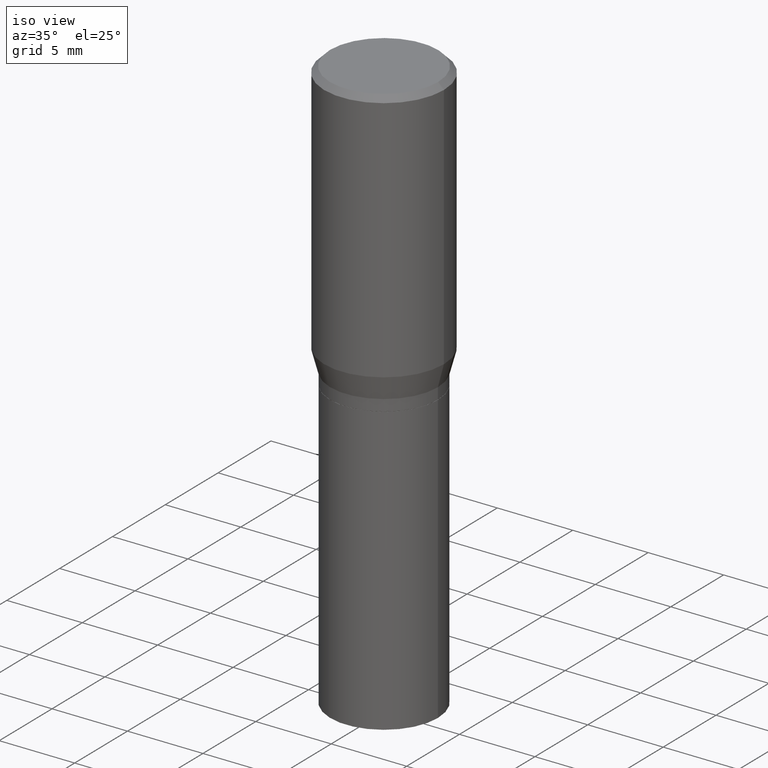
[diagram: clean part render]
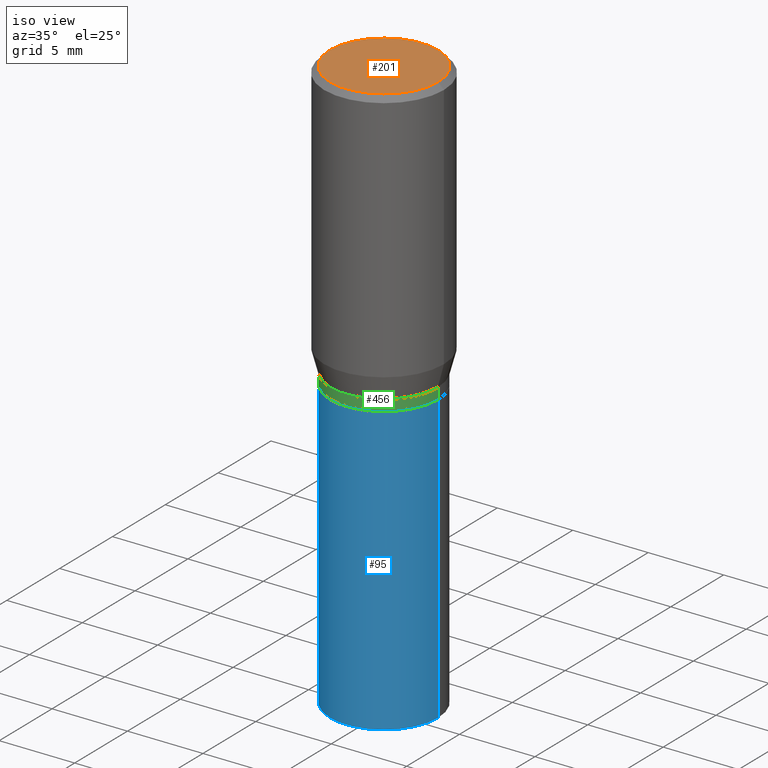
[diagram: same view with three faces highlighted in distinct colors, each labeled with its STEP entity id]
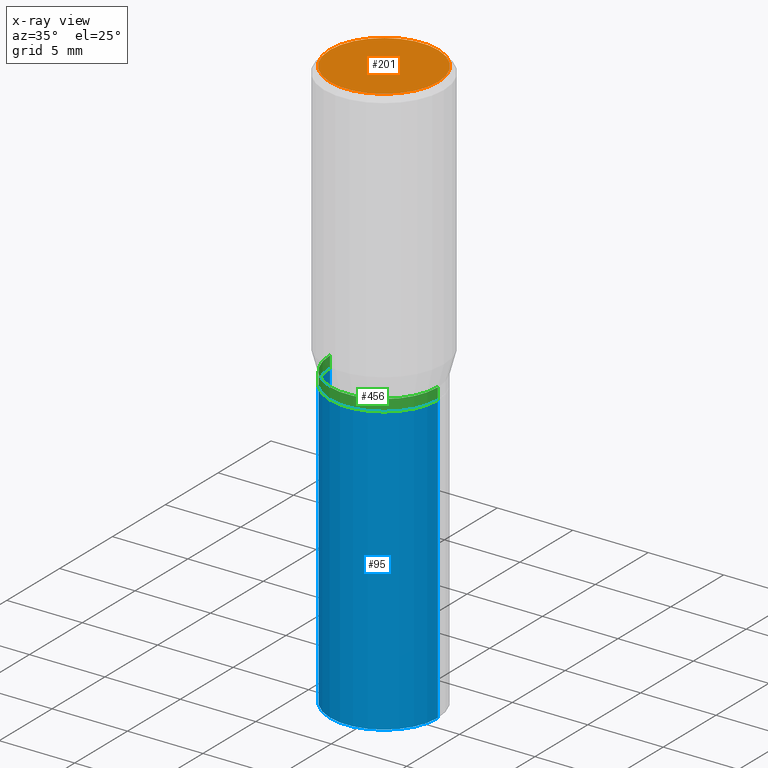
[diagram: x-ray of the same camera — body ghosted, the three highlighted faces saturated]
A machine part, iso view with three faces highlighted in distinct colors.
The next image is the same camera in x-ray (body ghosted, the three faces saturated) — at least one of them is partly hidden behind the body in this view.
Their STEP definitions:

[orange] entity #201 — the highlighted planar face has unit normal (0, -0, -1).
#13 = CARTESIAN_POINT ( 'NONE',  ( 9.863434782231852123E-16, 0.1412500000000000144, -3.382281833131152300E-16 ) ) ;
#15 = CARTESIAN_POINT ( 'NONE',  ( -0.1412500000000000144, 1.012529588264509344E-15, 3.098871115969513504E-16 ) ) ;
#17 = CARTESIAN_POINT ( 'NONE',  ( 0.1412500000000000144, -1.046685187209838552E-15, 3.098871115969654020E-16 ) ) ;
#24 = EDGE_CURVE ( 'NONE', #310, #285, #268, .T. ) ;
#90 = DIRECTION ( 'NONE',  ( 2.438088387897960049E-29, -3.491481338843145188E-15, -1.000000000000000000 ) ) ;
#96 = AXIS2_PLACEMENT_3D ( 'NONE', #386, #363, #212 ) ;
#104 = ORIENTED_EDGE ( 'NONE', *, *, #24, .T. ) ;
#117 = CIRCLE ( 'NONE', #364, 0.1412500000000000144 ) ;
#129 = DIRECTION ( 'NONE',  ( -2.445468806185136597E-29, 3.491481338843145583E-15, 1.000000000000000000 ) ) ;
#135 = ORIENTED_EDGE ( 'NONE', *, *, #306, .T. ) ;
#155 = DIRECTION ( 'NONE',  ( -1.000000000000000000, 6.982962677686265922E-15, -4.876176775795935793E-29 ) ) ;
#163 = CARTESIAN_POINT ( 'NONE',  ( -7.578192648491738489E-45, 1.081965067288783235E-30, 3.098871115969583022E-16 ) ) ;
#194 = AXIS2_PLACEMENT_3D ( 'NONE', #13, #90, #155 ) ;
#201 = ADVANCED_FACE ( 'NONE', ( #370 ), #407, .F. ) ;
#212 = DIRECTION ( 'NONE',  ( 1.000000000000000000, -6.982962677686265922E-15, 4.895681441798226927E-29 ) ) ;
#268 = CIRCLE ( 'NONE', #96, 0.1412500000000000144 ) ;
#276 = EDGE_LOOP ( 'NONE', ( #104, #135 ) ) ;
#285 = VERTEX_POINT ( 'NONE', #17 ) ;
#302 = DIRECTION ( 'NONE',  ( 1.000000000000000000, -6.982962677686265922E-15, 4.895681441798226927E-29 ) ) ;
#306 = EDGE_CURVE ( 'NONE', #285, #310, #117, .T. ) ;
#310 = VERTEX_POINT ( 'NONE', #15 ) ;
#363 = DIRECTION ( 'NONE',  ( -2.445468806185136597E-29, 3.491481338843145583E-15, 1.000000000000000000 ) ) ;
#364 = AXIS2_PLACEMENT_3D ( 'NONE', #163, #129, #302 ) ;
#370 = FACE_OUTER_BOUND ( 'NONE', #276, .T. ) ;
#386 = CARTESIAN_POINT ( 'NONE',  ( -7.578192648491738489E-45, 1.081965067288783235E-30, 3.098871115969583022E-16 ) ) ;
#407 = PLANE ( 'NONE',  #194 ) ;

[blue] entity #95 — the highlighted cylindrical surface (partial cylindrical patch) has radius 3.5712 mm, axis along (-0, 0, 1).
#22 = LINE ( 'NONE', #85, #39 ) ;
#39 = VECTOR ( 'NONE', #121, 39.37007874015748143 ) ;
#71 = ORIENTED_EDGE ( 'NONE', *, *, #239, .F. ) ;
#85 = CARTESIAN_POINT ( 'NONE',  ( 0.1406000000000000028, -9.818045524826891058E-16, 6.855904546769086274E-30 ) ) ;
#92 = CARTESIAN_POINT ( 'NONE',  ( -0.1406000000000000028, 9.990230864787008809E-16, -6.916022736898397739E-30 ) ) ;
#95 = ADVANCED_FACE ( 'NONE', ( #325 ), #216, .T. ) ;
#118 = DIRECTION ( 'NONE',  ( -2.445468806185136597E-29, 3.491481338843145583E-15, 1.000000000000000000 ) ) ;
#121 = DIRECTION ( 'NONE',  ( -2.445468806185136877E-29, 3.491481338843145188E-15, 1.000000000000000000 ) ) ;
#132 = ORIENTED_EDGE ( 'NONE', *, *, #320, .F. ) ;
#133 = AXIS2_PLACEMENT_3D ( 'NONE', #254, #257, #154 ) ;
#154 = DIRECTION ( 'NONE',  ( 1.000000000000000000, -6.982962677686266711E-15, 4.876176775795936353E-29 ) ) ;
#161 = CARTESIAN_POINT ( 'NONE',  ( 3.668203209277704895E-29, -5.237222008264718177E-15, -1.500000000000000222 ) ) ;
#191 = LINE ( 'NONE', #92, #220 ) ;
#196 = DIRECTION ( 'NONE',  ( -2.445468806185136877E-29, 3.491481338843145188E-15, 1.000000000000000000 ) ) ;
#216 = CYLINDRICAL_SURFACE ( 'NONE', #133, 0.1406000000000000028 ) ;
#220 = VECTOR ( 'NONE', #196, 39.37007874015748143 ) ;
#223 = CARTESIAN_POINT ( 'NONE',  ( 0.1406000000000000028, -3.600415556615047800E-15, -0.7500000000000001110 ) ) ;
#236 = AXIS2_PLACEMENT_3D ( 'NONE', #161, #266, #299 ) ;
#239 = EDGE_CURVE ( 'NONE', #352, #246, #346, .T. ) ;
#240 = EDGE_LOOP ( 'NONE', ( #132, #463, #419, #71 ) ) ;
#243 = VERTEX_POINT ( 'NONE', #367 ) ;
#246 = VERTEX_POINT ( 'NONE', #223 ) ;
#254 = CARTESIAN_POINT ( 'NONE',  ( 0.000000000000000000, 0.000000000000000000, 0.000000000000000000 ) ) ;
#257 = DIRECTION ( 'NONE',  ( -2.445468806185136597E-29, 3.491481338843145583E-15, 1.000000000000000000 ) ) ;
#263 = CARTESIAN_POINT ( 'NONE',  ( 1.834101604638852448E-29, -2.618611004132359088E-15, -0.7500000000000001110 ) ) ;
#266 = DIRECTION ( 'NONE',  ( -2.445468806185136597E-29, 3.491481338843145583E-15, 1.000000000000000000 ) ) ;
#292 = EDGE_CURVE ( 'NONE', #243, #308, #441, .T. ) ;
#299 = DIRECTION ( 'NONE',  ( 1.000000000000000000, -6.982962677686265133E-15, 0.000000000000000000 ) ) ;
#308 = VERTEX_POINT ( 'NONE', #449 ) ;
#320 = EDGE_CURVE ( 'NONE', #243, #352, #191, .T. ) ;
#325 = FACE_OUTER_BOUND ( 'NONE', #240, .T. ) ;
#346 = CIRCLE ( 'NONE', #448, 0.1406000000000000028 ) ;
#352 = VERTEX_POINT ( 'NONE', #376 ) ;
#367 = CARTESIAN_POINT ( 'NONE',  ( -0.1406000000000000028, -2.928893419719837949E-15, -1.500000000000000222 ) ) ;
#369 = EDGE_CURVE ( 'NONE', #308, #246, #22, .T. ) ;
#376 = CARTESIAN_POINT ( 'NONE',  ( -0.1406000000000000028, -2.928893419719837949E-15, -0.7500000000000001110 ) ) ;
#402 = DIRECTION ( 'NONE',  ( 1.000000000000000000, -6.982962677686265133E-15, 0.000000000000000000 ) ) ;
#419 = ORIENTED_EDGE ( 'NONE', *, *, #369, .T. ) ;
#441 = CIRCLE ( 'NONE', #236, 0.1406000000000000028 ) ;
#448 = AXIS2_PLACEMENT_3D ( 'NONE', #263, #118, #402 ) ;
#449 = CARTESIAN_POINT ( 'NONE',  ( 0.1406000000000000028, -6.219026560747407283E-15, -1.500000000000000222 ) ) ;
#463 = ORIENTED_EDGE ( 'NONE', *, *, #292, .T. ) ;

[green] entity #456 — the highlighted cylindrical surface (partial cylindrical patch) has radius 3.5712 mm, axis along (-0, 0, 1).
#20 = FACE_OUTER_BOUND ( 'NONE', #233, .T. ) ;
#29 = CYLINDRICAL_SURFACE ( 'NONE', #261, 0.1406000000000000305 ) ;
#35 = ORIENTED_EDGE ( 'NONE', *, *, #144, .T. ) ;
#36 = ORIENTED_EDGE ( 'NONE', *, *, #442, .F. ) ;
#52 = CIRCLE ( 'NONE', #228, 0.1406000000000000583 ) ;
#59 = CARTESIAN_POINT ( 'NONE',  ( -0.1406000000000000583, -1.617842176984236309E-15, -0.7495000000000000551 ) ) ;
#83 = DIRECTION ( 'NONE',  ( -2.445468806185136597E-29, 3.491481338843145583E-15, 1.000000000000000000 ) ) ;
#103 = DIRECTION ( 'NONE',  ( -2.445468806185136597E-29, 3.491481338843145583E-15, 1.000000000000000000 ) ) ;
#107 = VERTEX_POINT ( 'NONE', #182 ) ;
#115 = DIRECTION ( 'NONE',  ( -2.445468806185136597E-29, 3.491481338843145583E-15, 1.000000000000000000 ) ) ;
#140 = ORIENTED_EDGE ( 'NONE', *, *, #418, .T. ) ;
#144 = EDGE_CURVE ( 'NONE', #341, #107, #52, .T. ) ;
#165 = CARTESIAN_POINT ( 'NONE',  ( -0.1406000000000000028, -1.357280739919498424E-15, -0.7199999999999999734 ) ) ;
#182 = CARTESIAN_POINT ( 'NONE',  ( 0.1406000000000000583, -3.598669815945627085E-15, -0.7495000000000000551 ) ) ;
#184 = VECTOR ( 'NONE', #444, 39.37007874015748143 ) ;
#189 = LINE ( 'NONE', #298, #184 ) ;
#204 = CIRCLE ( 'NONE', #465, 0.1406000000000000028 ) ;
#218 = CARTESIAN_POINT ( 'NONE',  ( 1.832878870235759926E-29, -2.616865263462937979E-15, -0.7495000000000000551 ) ) ;
#228 = AXIS2_PLACEMENT_3D ( 'NONE', #218, #115, #251 ) ;
#230 = VECTOR ( 'NONE', #231, 39.37007874015748143 ) ;
#231 = DIRECTION ( 'NONE',  ( -2.445468806185136877E-29, 3.491481338843145188E-15, 1.000000000000000000 ) ) ;
#233 = EDGE_LOOP ( 'NONE', ( #36, #35, #140, #422 ) ) ;
#247 = CARTESIAN_POINT ( 'NONE',  ( 0.000000000000000000, 0.000000000000000000, 0.000000000000000000 ) ) ;
#251 = DIRECTION ( 'NONE',  ( 1.000000000000000000, -6.982962677686265133E-15, 0.000000000000000000 ) ) ;
#261 = AXIS2_PLACEMENT_3D ( 'NONE', #247, #103, #281 ) ;
#281 = DIRECTION ( 'NONE',  ( 1.000000000000000000, -6.982962677686266711E-15, 4.876176775795936353E-29 ) ) ;
#298 = CARTESIAN_POINT ( 'NONE',  ( -0.1406000000000000305, 9.990230864787010781E-16, -6.916022736898399140E-30 ) ) ;
#305 = CARTESIAN_POINT ( 'NONE',  ( 0.1406000000000000028, -3.495671116449754036E-15, -0.7199999999999999734 ) ) ;
#341 = VERTEX_POINT ( 'NONE', #59 ) ;
#343 = VERTEX_POINT ( 'NONE', #165 ) ;
#388 = VERTEX_POINT ( 'NONE', #305 ) ;
#391 = EDGE_CURVE ( 'NONE', #343, #388, #204, .T. ) ;
#409 = CARTESIAN_POINT ( 'NONE',  ( 0.1406000000000000305, -9.818045524826893030E-16, 6.855904546769087675E-30 ) ) ;
#412 = CARTESIAN_POINT ( 'NONE',  ( 1.760737540453298372E-29, -2.513866563967064930E-15, -0.7199999999999999734 ) ) ;
#418 = EDGE_CURVE ( 'NONE', #107, #388, #452, .T. ) ;
#422 = ORIENTED_EDGE ( 'NONE', *, *, #391, .F. ) ;
#442 = EDGE_CURVE ( 'NONE', #341, #343, #189, .T. ) ;
#444 = DIRECTION ( 'NONE',  ( -2.445468806185136877E-29, 3.491481338843145188E-15, 1.000000000000000000 ) ) ;
#446 = DIRECTION ( 'NONE',  ( 1.000000000000000000, -6.982962677686268288E-15, 0.000000000000000000 ) ) ;
#452 = LINE ( 'NONE', #409, #230 ) ;
#456 = ADVANCED_FACE ( 'NONE', ( #20 ), #29, .T. ) ;
#465 = AXIS2_PLACEMENT_3D ( 'NONE', #412, #83, #446 ) ;